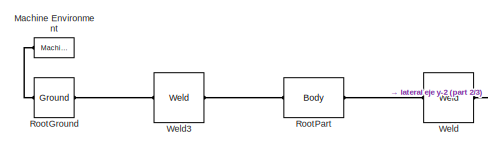
[diagram: root canvas - part 1/3, top left region]
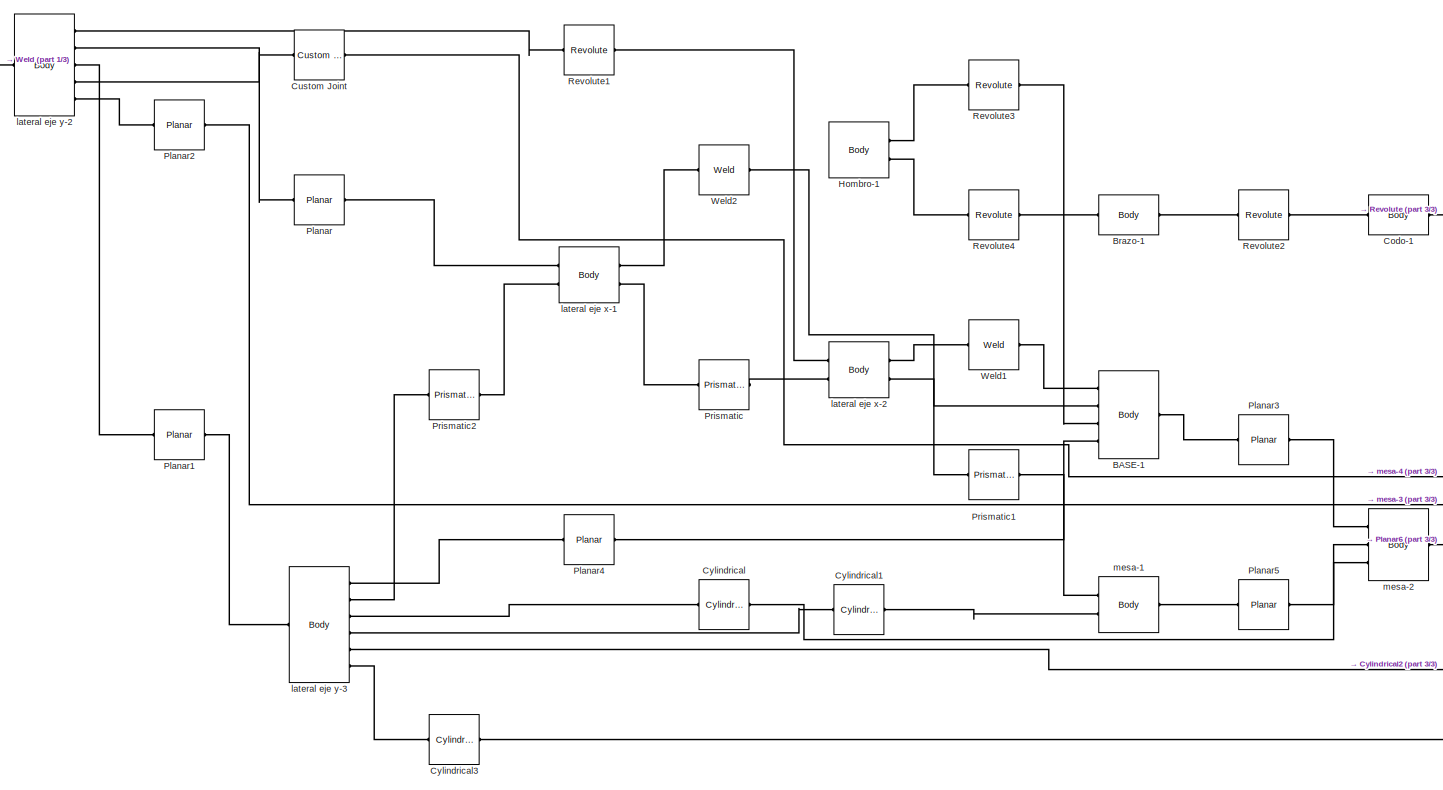
[diagram: root canvas - part 2/3, center side, full height]
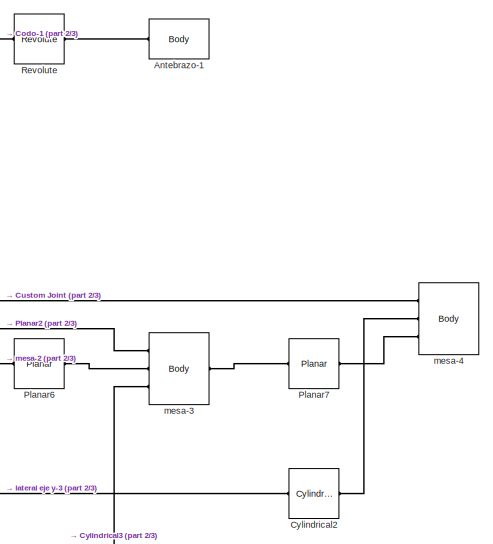
[diagram: root canvas - part 3/3, middle right region]
MODEL slx_60e2860d4301
KIND model
CONFIG AbsTol = auto
CONFIG EnableMultiTasking = off
CONFIG FixedStep = auto
CONFIG MaxStep = auto
CONFIG MinStep = auto
CONFIG RelTol = 1e-3
CONFIG SampleTimeConstraint = Unconstrained
CONFIG Solver = VariableStepAuto
CONFIG SolverName = VariableStepAuto
CONFIG StartTime = 0.0
CONFIG StopTime = 40.0
BLOCK [Reference] Antebrazo-1  REF=mblibv1/Bodies/Body
  Ports = [0, 0, 0, 0, 0, 1]
  SourceBlock = mblibv1/Bodies/Body
  SourceProductBaseCode = MS
  SourceProductName = Simscape Multibody
  SourceType = Body
BLOCK [Reference] BASE-1  REF=mblibv1/Bodies/Body
  Ports = [0, 0, 0, 0, 0, 4, 1]
  SourceBlock = mblibv1/Bodies/Body
  SourceProductBaseCode = MS
  SourceProductName = Simscape Multibody
  SourceType = Body
BLOCK [Reference] Brazo-1  REF=mblibv1/Bodies/Body
  Ports = [0, 0, 0, 0, 0, 1, 1]
  SourceBlock = mblibv1/Bodies/Body
  SourceProductBaseCode = MS
  SourceProductName = Simscape Multibody
  SourceType = Body
BLOCK [Reference] Codo-1  REF=mblibv1/Bodies/Body
  Ports = [0, 0, 0, 0, 0, 1, 1]
  SourceBlock = mblibv1/Bodies/Body
  SourceProductBaseCode = MS
  SourceProductName = Simscape Multibody
  SourceType = Body
BLOCK [Reference] Custom Joint  REF=mblibv1/Joints/Custom Joint
  Ports = [0, 0, 0, 0, 0, 1, 1]
  SourceBlock = mblibv1/Joints/Custom Joint
  SourceProductBaseCode = MS
  SourceProductName = Simscape Multibody
  SourceType = Custom Joint
BLOCK [Reference] Cylindrical  REF=mblibv1/Joints/Cylindrical
  Ports = [0, 0, 0, 0, 0, 1, 1]
  SourceBlock = mblibv1/Joints/Cylindrical
  SourceProductBaseCode = MS
  SourceProductName = Simscape Multibody
  SourceType = Cylindrical
BLOCK [Reference] Cylindrical1  REF=mblibv1/Joints/Cylindrical
  Ports = [0, 0, 0, 0, 0, 1, 1]
  SourceBlock = mblibv1/Joints/Cylindrical
  SourceProductBaseCode = MS
  SourceProductName = Simscape Multibody
  SourceType = Cylindrical
BLOCK [Reference] Cylindrical2  REF=mblibv1/Joints/Cylindrical
  Ports = [0, 0, 0, 0, 0, 1, 1]
  SourceBlock = mblibv1/Joints/Cylindrical
  SourceProductBaseCode = MS
  SourceProductName = Simscape Multibody
  SourceType = Cylindrical
BLOCK [Reference] Cylindrical3  REF=mblibv1/Joints/Cylindrical
  Ports = [0, 0, 0, 0, 0, 1, 1]
  SourceBlock = mblibv1/Joints/Cylindrical
  SourceProductBaseCode = MS
  SourceProductName = Simscape Multibody
  SourceType = Cylindrical
BLOCK [Reference] Hombro-1  REF=mblibv1/Bodies/Body
  Ports = [0, 0, 0, 0, 0, 0, 2]
  SourceBlock = mblibv1/Bodies/Body
  SourceProductBaseCode = MS
  SourceProductName = Simscape Multibody
  SourceType = Body
BLOCK [Reference] Machine Environment  REF=mblibv1/Bodies/Machine
Environment
  Ports = [0, 0, 0, 0, 0, 0, 1]
  SourceBlock = mblibv1/Bodies/Machine\nEnvironment
  SourceProductBaseCode = MS
  SourceProductName = Simscape Multibody
  SourceType = Machine Environment
BLOCK [Reference] Planar  REF=mblibv1/Joints/Planar
  Ports = [0, 0, 0, 0, 0, 1, 1]
  SourceBlock = mblibv1/Joints/Planar
  SourceProductBaseCode = MS
  SourceProductName = Simscape Multibody
  SourceType = Planar
BLOCK [Reference] Planar1  REF=mblibv1/Joints/Planar
  Ports = [0, 0, 0, 0, 0, 1, 1]
  SourceBlock = mblibv1/Joints/Planar
  SourceProductBaseCode = MS
  SourceProductName = Simscape Multibody
  SourceType = Planar
BLOCK [Reference] Planar2  REF=mblibv1/Joints/Planar
  Ports = [0, 0, 0, 0, 0, 1, 1]
  SourceBlock = mblibv1/Joints/Planar
  SourceProductBaseCode = MS
  SourceProductName = Simscape Multibody
  SourceType = Planar
BLOCK [Reference] Planar3  REF=mblibv1/Joints/Planar
  Ports = [0, 0, 0, 0, 0, 1, 1]
  SourceBlock = mblibv1/Joints/Planar
  SourceProductBaseCode = MS
  SourceProductName = Simscape Multibody
  SourceType = Planar
BLOCK [Reference] Planar4  REF=mblibv1/Joints/Planar
  Ports = [0, 0, 0, 0, 0, 1, 1]
  SourceBlock = mblibv1/Joints/Planar
  SourceProductBaseCode = MS
  SourceProductName = Simscape Multibody
  SourceType = Planar
BLOCK [Reference] Planar5  REF=mblibv1/Joints/Planar
  Ports = [0, 0, 0, 0, 0, 1, 1]
  SourceBlock = mblibv1/Joints/Planar
  SourceProductBaseCode = MS
  SourceProductName = Simscape Multibody
  SourceType = Planar
BLOCK [Reference] Planar6  REF=mblibv1/Joints/Planar
  Ports = [0, 0, 0, 0, 0, 1, 1]
  SourceBlock = mblibv1/Joints/Planar
  SourceProductBaseCode = MS
  SourceProductName = Simscape Multibody
  SourceType = Planar
BLOCK [Reference] Planar7  REF=mblibv1/Joints/Planar
  Ports = [0, 0, 0, 0, 0, 1, 1]
  SourceBlock = mblibv1/Joints/Planar
  SourceProductBaseCode = MS
  SourceProductName = Simscape Multibody
  SourceType = Planar
BLOCK [Reference] Prismatic  REF=mblibv1/Joints/Prismatic
  Ports = [0, 0, 0, 0, 0, 1, 1]
  SourceBlock = mblibv1/Joints/Prismatic
  SourceProductBaseCode = MS
  SourceProductName = Simscape Multibody
  SourceType = Prismatic
BLOCK [Reference] Prismatic1  REF=mblibv1/Joints/Prismatic
  Ports = [0, 0, 0, 0, 0, 1, 1]
  SourceBlock = mblibv1/Joints/Prismatic
  SourceProductBaseCode = MS
  SourceProductName = Simscape Multibody
  SourceType = Prismatic
BLOCK [Reference] Prismatic2  REF=mblibv1/Joints/Prismatic
  Ports = [0, 0, 0, 0, 0, 1, 1]
  SourceBlock = mblibv1/Joints/Prismatic
  SourceProductBaseCode = MS
  SourceProductName = Simscape Multibody
  SourceType = Prismatic
BLOCK [Reference] Revolute  REF=mblibv1/Joints/Revolute
  Ports = [0, 0, 0, 0, 0, 1, 1]
  SourceBlock = mblibv1/Joints/Revolute
  SourceProductBaseCode = MS
  SourceProductName = Simscape Multibody
  SourceType = Revolute
BLOCK [Reference] Revolute1  REF=mblibv1/Joints/Revolute
  Ports = [0, 0, 0, 0, 0, 1, 1]
  SourceBlock = mblibv1/Joints/Revolute
  SourceProductBaseCode = MS
  SourceProductName = Simscape Multibody
  SourceType = Revolute
BLOCK [Reference] Revolute2  REF=mblibv1/Joints/Revolute
  Ports = [0, 0, 0, 0, 0, 1, 1]
  SourceBlock = mblibv1/Joints/Revolute
  SourceProductBaseCode = MS
  SourceProductName = Simscape Multibody
  SourceType = Revolute
BLOCK [Reference] Revolute3  REF=mblibv1/Joints/Revolute
  Ports = [0, 0, 0, 0, 0, 1, 1]
  SourceBlock = mblibv1/Joints/Revolute
  SourceProductBaseCode = MS
  SourceProductName = Simscape Multibody
  SourceType = Revolute
BLOCK [Reference] Revolute4  REF=mblibv1/Joints/Revolute
  Ports = [0, 0, 0, 0, 0, 1, 1]
  SourceBlock = mblibv1/Joints/Revolute
  SourceProductBaseCode = MS
  SourceProductName = Simscape Multibody
  SourceType = Revolute
BLOCK [Reference] RootGround  REF=mblibv1/Bodies/Ground
  Ports = [0, 0, 0, 0, 0, 1, 1]
  SourceBlock = mblibv1/Bodies/Ground
  SourceProductBaseCode = MS
  SourceProductName = Simscape Multibody
  SourceType = Ground
  UserDataPersistent = on
BLOCK [Reference] RootPart  REF=mblibv1/Bodies/Body
  Ports = [0, 0, 0, 0, 0, 1, 1]
  SourceBlock = mblibv1/Bodies/Body
  SourceProductBaseCode = MS
  SourceProductName = Simscape Multibody
  SourceType = Body
BLOCK [Reference] Weld  REF=mblibv1/Joints/Weld
  Ports = [0, 0, 0, 0, 0, 1, 1]
  SourceBlock = mblibv1/Joints/Weld
  SourceProductBaseCode = MS
  SourceProductName = Simscape Multibody
  SourceType = Weld
BLOCK [Reference] Weld1  REF=mblibv1/Joints/Weld
  Ports = [0, 0, 0, 0, 0, 1, 1]
  SourceBlock = mblibv1/Joints/Weld
  SourceProductBaseCode = MS
  SourceProductName = Simscape Multibody
  SourceType = Weld
BLOCK [Reference] Weld2  REF=mblibv1/Joints/Weld
  Ports = [0, 0, 0, 0, 0, 1, 1]
  SourceBlock = mblibv1/Joints/Weld
  SourceProductBaseCode = MS
  SourceProductName = Simscape Multibody
  SourceType = Weld
BLOCK [Reference] Weld3  REF=mblibv1/Joints/Weld
  Ports = [0, 0, 0, 0, 0, 1, 1]
  SourceBlock = mblibv1/Joints/Weld
  SourceProductBaseCode = MS
  SourceProductName = Simscape Multibody
  SourceType = Weld
BLOCK [Reference] lateral eje x-1  REF=mblibv1/Bodies/Body
  Ports = [0, 0, 0, 0, 0, 2, 2]
  SourceBlock = mblibv1/Bodies/Body
  SourceProductBaseCode = MS
  SourceProductName = Simscape Multibody
  SourceType = Body
BLOCK [Reference] lateral eje x-2  REF=mblibv1/Bodies/Body
  Ports = [0, 0, 0, 0, 0, 2, 2]
  SourceBlock = mblibv1/Bodies/Body
  SourceProductBaseCode = MS
  SourceProductName = Simscape Multibody
  SourceType = Body
BLOCK [Reference] lateral eje y-2  REF=mblibv1/Bodies/Body
  Ports = [0, 0, 0, 0, 0, 1, 5]
  SourceBlock = mblibv1/Bodies/Body
  SourceProductBaseCode = MS
  SourceProductName = Simscape Multibody
  SourceType = Body
BLOCK [Reference] lateral eje y-3  REF=mblibv1/Bodies/Body
  Ports = [0, 0, 0, 0, 0, 1, 6]
  SourceBlock = mblibv1/Bodies/Body
  SourceProductBaseCode = MS
  SourceProductName = Simscape Multibody
  SourceType = Body
BLOCK [Reference] mesa-1  REF=mblibv1/Bodies/Body
  Ports = [0, 0, 0, 0, 0, 2, 1]
  SourceBlock = mblibv1/Bodies/Body
  SourceProductBaseCode = MS
  SourceProductName = Simscape Multibody
  SourceType = Body
BLOCK [Reference] mesa-2  REF=mblibv1/Bodies/Body
  Ports = [0, 0, 0, 0, 0, 3, 1]
  SourceBlock = mblibv1/Bodies/Body
  SourceProductBaseCode = MS
  SourceProductName = Simscape Multibody
  SourceType = Body
BLOCK [Reference] mesa-3  REF=mblibv1/Bodies/Body
  Ports = [0, 0, 0, 0, 0, 3, 1]
  SourceBlock = mblibv1/Bodies/Body
  SourceProductBaseCode = MS
  SourceProductName = Simscape Multibody
  SourceType = Body
BLOCK [Reference] mesa-4  REF=mblibv1/Bodies/Body
  Ports = [0, 0, 0, 0, 0, 3]
  SourceBlock = mblibv1/Bodies/Body
  SourceProductBaseCode = MS
  SourceProductName = Simscape Multibody
  SourceType = Body
PLINE Antebrazo-1:LConn1 -- Revolute:RConn1
PLINE BASE-1:LConn1 -- Weld1:RConn1
PLINE BASE-1:LConn2 -- Weld2:RConn1
PLINE BASE-1:LConn3 -- Revolute3:RConn1
PLINE BASE-1:LConn4 -- Planar4:RConn1
PLINE BASE-1:RConn1 -- Planar3:LConn1
PLINE Brazo-1:LConn1 -- Revolute4:RConn1
PLINE Brazo-1:RConn1 -- Revolute2:LConn1
PLINE Codo-1:LConn1 -- Revolute2:RConn1
PLINE Codo-1:RConn1 -- Revolute:LConn1
PLINE Custom Joint:LConn1 -- lateral eje y-2:RConn4
PLINE Custom Joint:RConn1 -- mesa-4:LConn1
PLINE Cylindrical1:LConn1 -- lateral eje y-3:RConn4
PLINE Cylindrical1:RConn1 -- mesa-1:LConn2
PLINE Cylindrical2:LConn1 -- lateral eje y-3:RConn5
PLINE Cylindrical2:RConn1 -- mesa-4:LConn2
PLINE Cylindrical3:LConn1 -- lateral eje y-3:RConn6
PLINE Cylindrical3:RConn1 -- mesa-3:LConn3
PLINE Cylindrical:LConn1 -- lateral eje y-3:RConn3
PLINE Cylindrical:RConn1 -- mesa-2:LConn2
PLINE Hombro-1:RConn1 -- Revolute3:LConn1
PLINE Hombro-1:RConn2 -- Revolute4:LConn1
PLINE Machine Environment:RConn1 -- RootGround:LConn1
PLINE Planar1:LConn1 -- lateral eje y-2:RConn3
PLINE Planar1:RConn1 -- lateral eje y-3:LConn1
PLINE Planar2:LConn1 -- lateral eje y-2:RConn5
PLINE Planar2:RConn1 -- mesa-3:LConn1
PLINE Planar3:RConn1 -- mesa-2:LConn1
PLINE Planar4:LConn1 -- lateral eje y-3:RConn1
PLINE Planar5:LConn1 -- mesa-1:RConn1
PLINE Planar5:RConn1 -- mesa-2:LConn3
PLINE Planar6:LConn1 -- mesa-2:RConn1
PLINE Planar6:RConn1 -- mesa-3:LConn2
PLINE Planar7:LConn1 -- mesa-3:RConn1
PLINE Planar7:RConn1 -- mesa-4:LConn3
PLINE Planar:LConn1 -- lateral eje y-2:RConn2
PLINE Planar:RConn1 -- lateral eje x-1:LConn1
PLINE Prismatic1:LConn1 -- lateral eje x-2:RConn2
PLINE Prismatic1:RConn1 -- mesa-1:LConn1
PLINE Prismatic2:LConn1 -- lateral eje y-3:RConn2
PLINE Prismatic2:RConn1 -- lateral eje x-1:LConn2
PLINE Prismatic:LConn1 -- lateral eje x-1:RConn2
PLINE Prismatic:RConn1 -- lateral eje x-2:LConn2
PLINE Revolute1:LConn1 -- lateral eje y-2:RConn1
PLINE Revolute1:RConn1 -- lateral eje x-2:LConn1
PLINE RootGround:RConn1 -- Weld3:LConn1
PLINE RootPart:LConn1 -- Weld3:RConn1
PLINE RootPart:RConn1 -- Weld:LConn1
PLINE Weld1:LConn1 -- lateral eje x-2:RConn1
PLINE Weld2:LConn1 -- lateral eje x-1:RConn1
PLINE Weld:RConn1 -- lateral eje y-2:LConn1
